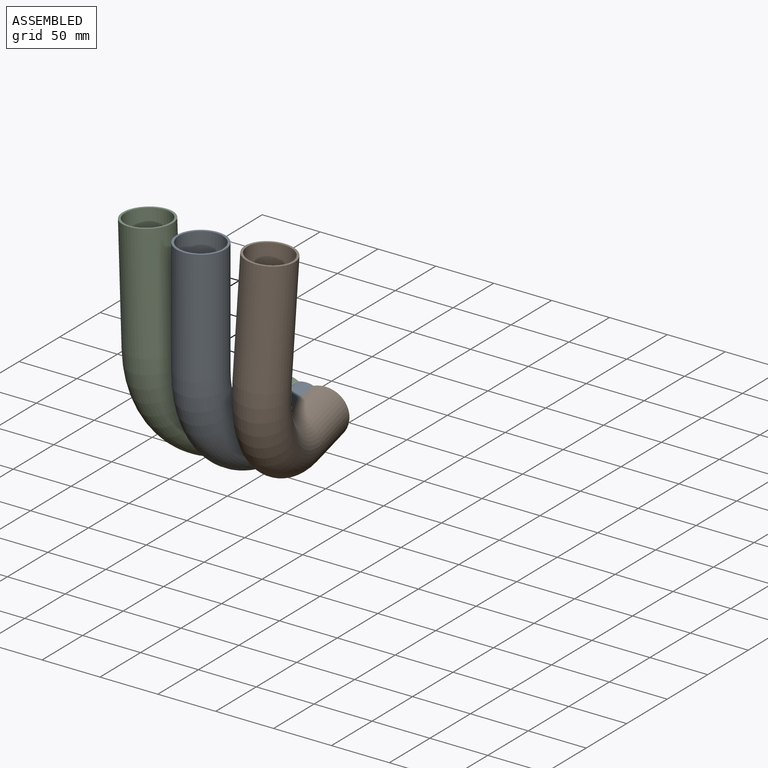
[diagram: assembled view]
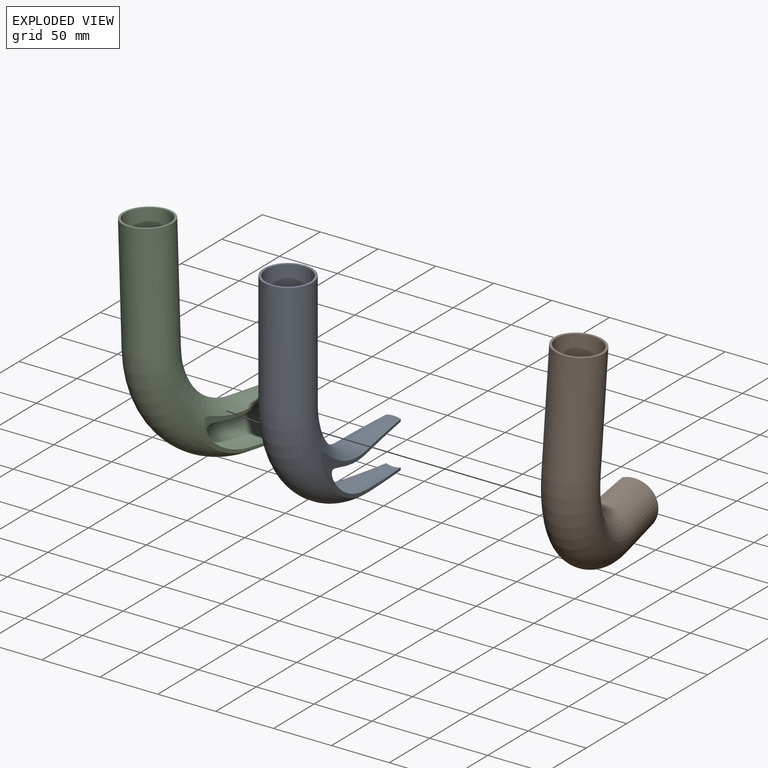
[diagram: exploded view]
GUIDED TOUR — MATED ASSEMBLY (Onshape document b40ffb2376809debd4cfbd4d, AutoMate assembly b40ffb2376809debd4cfbd4d_5d13aac50a0f370f7dc3dde9_d247ac0e1e0837ec62060219_default)

This assembly has 3 components, labeled P0..P2 below (a component is one placed occurrence of a part; the same part can appear more than once), held together by 2 mates. A mate is a constraint between two components; its type names the relative motion it leaves free:
  FASTENED — locks the two components together rigidly (no relative motion).
Axis/direction vectors are unit vectors and 'through' points are millimeter coordinates, both in the assembly's world frame.

MATES
  1. FASTENED "Fastened 1": P0 <-> P1, direction (0.993, 0.122, 0.000) through (0.00, 56.39, -38.70) mm
  2. FASTENED "Fastened 2": P0 <-> P2, direction (-0.993, 0.122, 0.000) through (-12.67, 56.39, -38.70) mm

ASSEMBLY ORDER
  1. P2 — the base component [order verified]
  2. P0 [order verified]
  3. P1 [order verified]
Order-tag legend:
  [order verified] — this step's position reverses a verified removal order: the component was checked to insert without passing through the ones already placed.

Of the 3 components, 3 carry the full construction recipe — the FeatureScript program that regenerates the part's solid from scratch; the rest are supplied as boundary geometry only.
Each toured component is shown spotlighted twice — in the assembled view, then in the exploded view, where a leader line traces a displaced component back to its assembled socket (saturated green if recipe-attached, orange if geometry-only; every other component desaturated gray) — followed by its recipe or geometry summary and the mates that hold it.
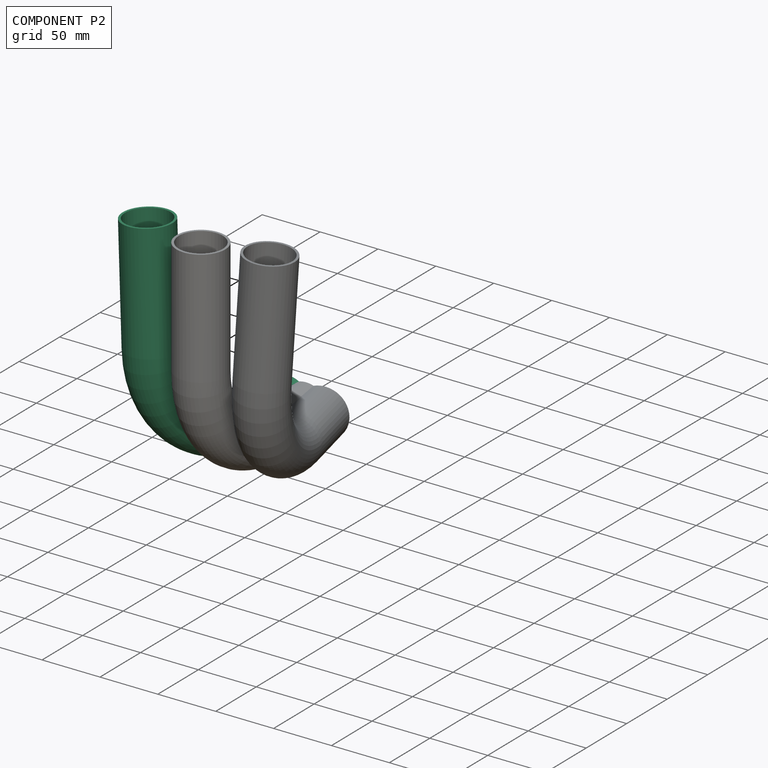
[diagram: component P2 — assembled]
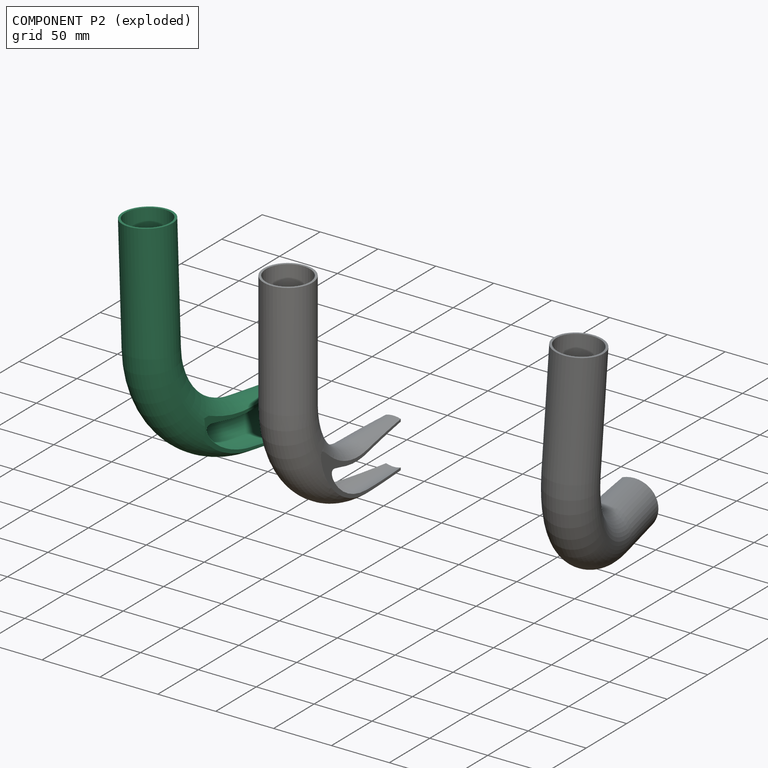
[diagram: component P2 — exploded]
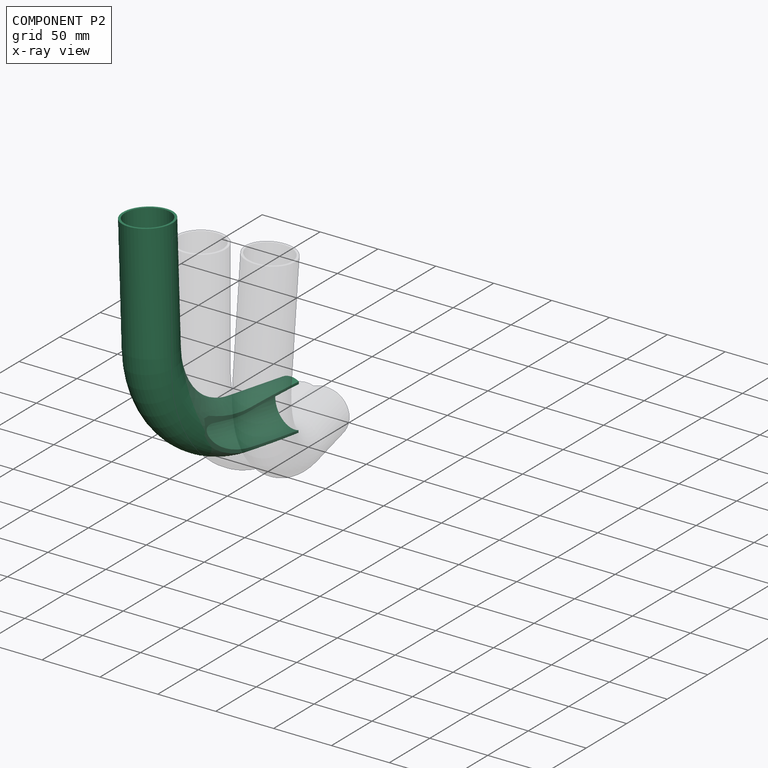
[diagram: component P2 — x-ray view]
COMPONENT P2 — recipe-attached (CADFS 00410510, mesh-verified: the recipe's output STEP matches this component's geometry to below the mesh-comparison resolution (tessellation chordal tolerance ~0.382 mm)).
Held by: FASTENED mate "Fastened 2" to P0.
Construction recipe (FeatureScript — the CAD program that rebuilds this solid; sketch coordinates are in the units given by the * unit suffixes, e.g. mm):

FeatureScript 2105;
import(path : "onshape/std/geometry.fs", version : "2105.0");
import(path : "onshape/std/common.fs", version : "2105.0");
const mm = millimeter;
const VERTEX = EntityType.VERTEX;
const EDGE = EntityType.EDGE;
const FACE = EntityType.FACE;
const BODY = EntityType.BODY;
function v(x, y){return vector(x, y);}
function OD(order){return orderDisambiguation(order);}
function OSD(set){return originalSetDisambiguation(set);}
function TD(topology){return topologyDisambiguation(topology);}
function TDD(query){return trueDependencyDisambiguation(query);}
function sQuery(a, b, c) {return sketchEntityQuery(a, b, c);}

annotation { "Feature Type Name" : "Feature", "Feature Type Description" : "" }
export const myFeature = defineFeature(function(context is Context, id is Id, definition is map)
    precondition{}
    {
        {
            var Q0;
            Q0=qCreatedBy(makeId("Right.planeOp"),FACE);
            var sketch = newSketch(context, id + "F0", { "sketchPlane" : qUnion([Q0])});
            skArc(sketch, "E0", {"start": v(0, -80) * mm, "mid": v(-56.57, -56.57) * mm, "end": v(-80, 0) * mm});
            skSolve(sketch);
        }
        {
            var Q0;
            Q0=qCreatedBy(makeId("Top.planeOp"),FACE);
            var sketch = newSketch(context, id + "F1", { "sketchPlane" : qUnion([Q0])});
            skCircle(sketch, "E1", {"center": v(0, -80.02) * mm, "radius": 21 * mm});
            skCircle(sketch, "E2", {"center": v(0, -80.02) * mm, "radius": 19 * mm});
            skSolve(sketch);
        }
        {
            var Q0;
            Q0=makeQuery(id+"F1.imprint","IMPRINT",FACE,{"disambiguationData":[TD([[makeQuery(id+"F1.imprint","IMPRINT",EDGE,{"derivedFrom":sQuery(id+"F1.wireOp",EDGE,"E1")}),1.0]])]});
            var Q1;
            Q1=sQuery(id+"F0.wireOp",EDGE,"E0");
            sweep(context, id + "F2", {"profiles" : qUnion([Q0]), "path" : qUnion([Q1])});
        }
        {
            var Q0;
            Q0=makeQuery(id+"F2.opSweep","CAP_FACE",FACE,{"disambiguationData":[OSD([sQuery(id+"F0.wireOp",VERTEX,"E0.end"),sQuery(id+"F1.wireOp",EDGE,"E1"),sQuery(id+"F1.wireOp",EDGE,"E2")])],"isStart":true});
            extrude(context, id + "F3", {"entities" : qUnion([Q0]), "operationType" : NewBodyOperationType.ADD, "depth" : 100 * mm});
        }
        {
            var Q0;
            Q0=makeQuery(id+"F2.opSweep","CAP_FACE",FACE,{"disambiguationData":[OSD([sQuery(id+"F0.wireOp",VERTEX,"E0.start"),sQuery(id+"F1.wireOp",EDGE,"E1"),sQuery(id+"F1.wireOp",EDGE,"E2")])],"isStart":false});
            extrude(context, id + "F4", {"entities" : qUnion([Q0]), "operationType" : NewBodyOperationType.ADD, "depth" : 50 * mm});
        }
        {
            var Q0;
            Q0=makeQuery(id+"F4.opExtrude","SWEPT_FACE",FACE,{"disambiguationData":[OSD([sQuery(id+"F0.wireOp",VERTEX,"E0.start"),sQuery(id+"F1.wireOp",EDGE,"E2")])]});
            cPlane(context, id + "F5", {"entities" : qUnion([Q0]), "cplaneType" : CPlaneType.LINE_ANGLE, "offset" : 25 * mm, "angle" : 3 * degree, "width" : 150 * mm, "height" : 150 * mm});
        }
        {
            var Q0;
            Q0=qCreatedBy(id+"F5.planeOp",FACE);
            var sketch = newSketch(context, id + "F6", { "sketchPlane" : qUnion([Q0])});
            skLineSegment(sketch, "E3", {"start": v(-2.15, 50) * mm, "end": v(-14.42, -50) * mm, "construction": true});
            skLineSegment(sketch, "E4", {"start": v(-14.42, -50) * mm, "end": v(-50, -50) * mm, "construction": true});
            skLineSegment(sketch, "E5", {"start": v(-50, -50) * mm, "end": v(-50, 50) * mm, "construction": true});
            skLineSegment(sketch, "E6", {"start": v(-50, 50) * mm, "end": v(-2.15, 50) * mm, "construction": true});
            skLineSegment(sketch, "E7.0", {"start": v(23.19, 50) * mm, "end": v(-14.81, 50) * mm});
            skLineSegment(sketch, "E8.MirrorCS", {"start": v(58.38, 50) * mm, "end": v(10.52, 50) * mm});
            skLineSegment(sketch, "E9.MirrorCS", {"start": v(58.38, -50) * mm, "end": v(58.38, 50) * mm});
            skLineSegment(sketch, "E10.MirrorCS", {"start": v(10.52, 50) * mm, "end": v(22.8, -50) * mm});
            skLineSegment(sketch, "E11.MirrorCS", {"start": v(22.8, -50) * mm, "end": v(58.38, -50) * mm});
            skSolve(sketch);
        }
        {
            var Q0;
            Q0=qSketchRegion(id+"F6",true);
            extrude(context, id + "F7", {"entities" : qUnion([Q0]), "operationType" : NewBodyOperationType.REMOVE, "depth" : 50 * mm, "symmetric" : true});
        }
    });
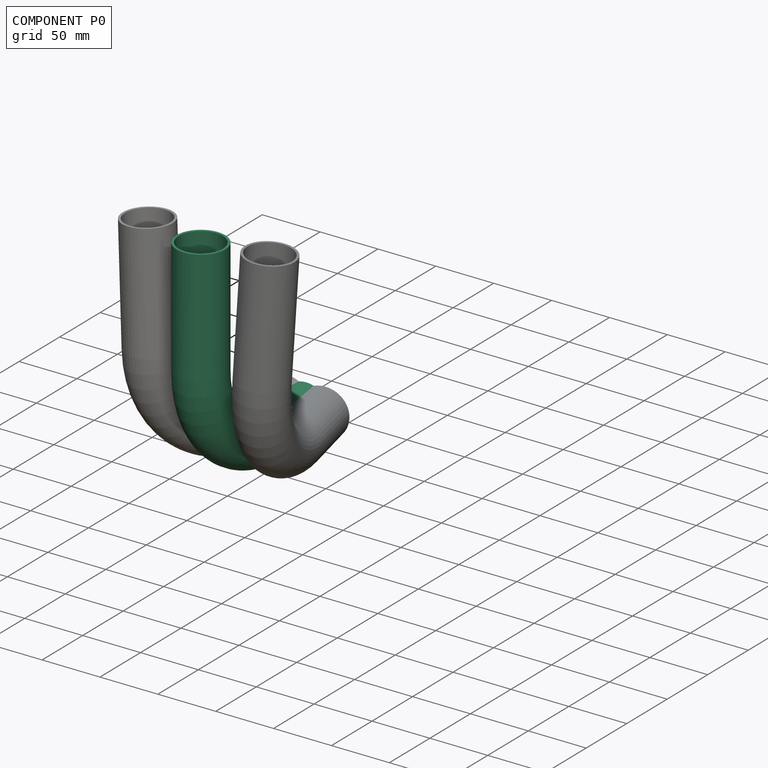
[diagram: component P0 — assembled]
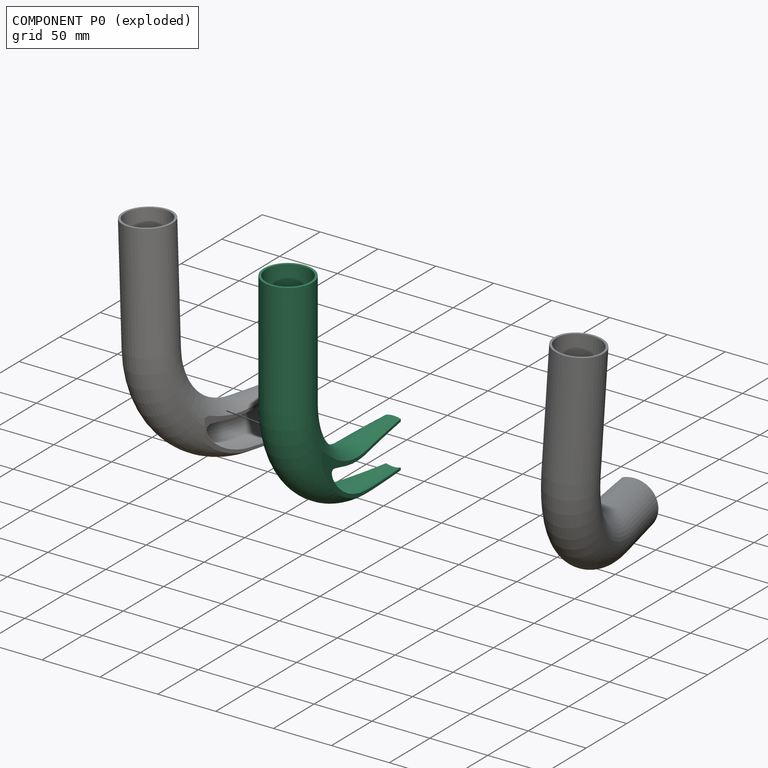
[diagram: component P0 — exploded]
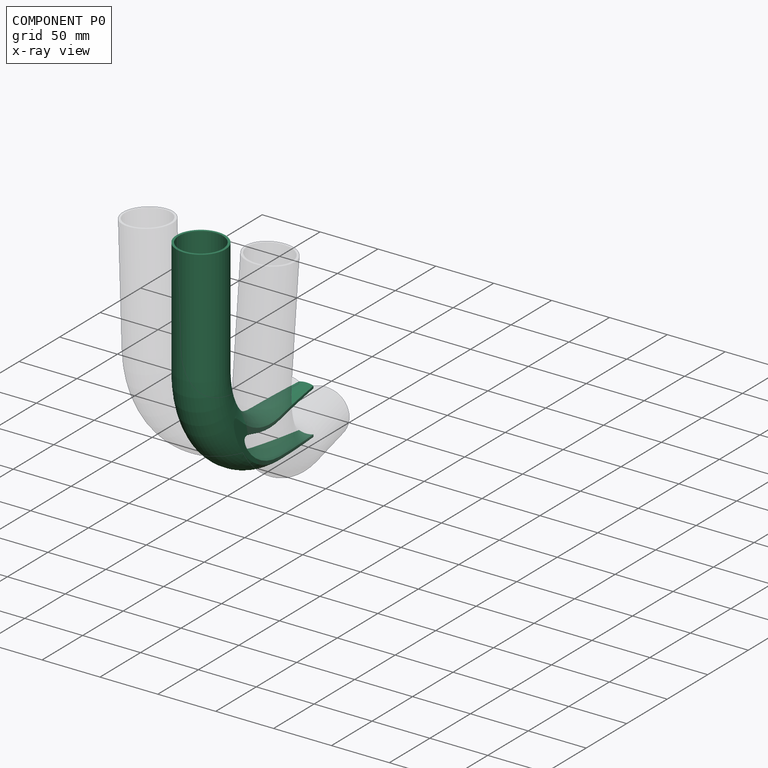
[diagram: component P0 — x-ray view]
COMPONENT P0 — recipe-attached (CADFS 00410509, mesh-verified: the recipe's output STEP matches this component's geometry to below the mesh-comparison resolution (tessellation chordal tolerance ~0.382 mm)).
Held by: FASTENED mate "Fastened 1" to P1; FASTENED mate "Fastened 2" to P2.
Construction recipe (FeatureScript — the CAD program that rebuilds this solid; sketch coordinates are in the units given by the * unit suffixes, e.g. mm):

FeatureScript 2105;
import(path : "onshape/std/geometry.fs", version : "2105.0");
import(path : "onshape/std/common.fs", version : "2105.0");
const mm = millimeter;
const VERTEX = EntityType.VERTEX;
const EDGE = EntityType.EDGE;
const FACE = EntityType.FACE;
const BODY = EntityType.BODY;
function v(x, y){return vector(x, y);}
function OD(order){return orderDisambiguation(order);}
function OSD(set){return originalSetDisambiguation(set);}
function TD(topology){return topologyDisambiguation(topology);}
function TDD(query){return trueDependencyDisambiguation(query);}
function sQuery(a, b, c) {return sketchEntityQuery(a, b, c);}

annotation { "Feature Type Name" : "Feature", "Feature Type Description" : "" }
export const myFeature = defineFeature(function(context is Context, id is Id, definition is map)
    precondition{}
    {
        {
            var Q0;
            Q0=qCreatedBy(makeId("Right.planeOp"),FACE);
            var sketch = newSketch(context, id + "F0", { "sketchPlane" : qUnion([Q0])});
            skArc(sketch, "E0", {"start": v(0, -80) * mm, "mid": v(-56.57, -56.57) * mm, "end": v(-80, 0) * mm});
            skSolve(sketch);
        }
        {
            var Q0;
            Q0=qCreatedBy(makeId("Top.planeOp"),FACE);
            var sketch = newSketch(context, id + "F1", { "sketchPlane" : qUnion([Q0])});
            skCircle(sketch, "E1", {"center": v(0, -80.02) * mm, "radius": 21 * mm});
            skCircle(sketch, "E2", {"center": v(0, -80.02) * mm, "radius": 19 * mm});
            skSolve(sketch);
        }
        {
            var Q0;
            Q0=makeQuery(id+"F1.imprint","IMPRINT",FACE,{"disambiguationData":[TD([[makeQuery(id+"F1.imprint","IMPRINT",EDGE,{"derivedFrom":sQuery(id+"F1.wireOp",EDGE,"E1")}),1.0]])]});
            var Q1;
            Q1=sQuery(id+"F0.wireOp",EDGE,"E0");
            sweep(context, id + "F2", {"profiles" : qUnion([Q0]), "path" : qUnion([Q1])});
        }
        {
            var Q0;
            Q0=makeQuery(id+"F2.opSweep","CAP_FACE",FACE,{"disambiguationData":[OSD([sQuery(id+"F0.wireOp",VERTEX,"E0.end"),sQuery(id+"F1.wireOp",EDGE,"E1"),sQuery(id+"F1.wireOp",EDGE,"E2")])],"isStart":true});
            extrude(context, id + "F3", {"entities" : qUnion([Q0]), "operationType" : NewBodyOperationType.ADD, "depth" : 100 * mm});
        }
        {
            var Q0;
            Q0=makeQuery(id+"F2.opSweep","CAP_FACE",FACE,{"disambiguationData":[OSD([sQuery(id+"F0.wireOp",VERTEX,"E0.start"),sQuery(id+"F1.wireOp",EDGE,"E1"),sQuery(id+"F1.wireOp",EDGE,"E2")])],"isStart":false});
            extrude(context, id + "F4", {"entities" : qUnion([Q0]), "operationType" : NewBodyOperationType.ADD, "depth" : 50 * mm});
        }
        {
            var Q0;
            Q0=makeQuery(id+"F4.opExtrude","SWEPT_FACE",FACE,{"disambiguationData":[OSD([sQuery(id+"F0.wireOp",VERTEX,"E0.start"),sQuery(id+"F1.wireOp",EDGE,"E2")])]});
            cPlane(context, id + "F5", {"entities" : qUnion([Q0]), "cplaneType" : CPlaneType.LINE_ANGLE, "offset" : 25 * mm, "angle" : 0 * degree, "width" : 150 * mm, "height" : 150 * mm});
        }
        {
            var Q0;
            Q0=qCreatedBy(id+"F5.planeOp",FACE);
            var sketch = newSketch(context, id + "F6", { "sketchPlane" : qUnion([Q0])});
            skLineSegment(sketch, "E3", {"start": v(-6.33, 50) * mm, "end": v(-30.9, -150) * mm});
            skLineSegment(sketch, "E4", {"start": v(-30.9, -150) * mm, "end": v(-50, -150) * mm});
            skLineSegment(sketch, "E5", {"start": v(-50, -150) * mm, "end": v(-50, 50) * mm});
            skLineSegment(sketch, "E6", {"start": v(-50, 50) * mm, "end": v(-6.33, 50) * mm});
            skLineSegment(sketch, "E7.0", {"start": v(19, 50) * mm, "end": v(-19, 50) * mm});
            skLineSegment(sketch, "E8.MirrorCS", {"start": v(50, 50) * mm, "end": v(6.33, 50) * mm});
            skSolve(sketch);
        }
        {
            var Q0;
            Q0=qSketchRegion(id+"F6",true);
            extrude(context, id + "F7", {"entities" : qUnion([Q0]), "depth" : 200 * mm, "symmetric" : true});
        }
        {
            var Q0;
            Q0=makeQuery(id+"F7.opExtrude","SWEPT_BODY",BODY,{"disambiguationData":[OSD([sQuery(id+"F6.wireOp",EDGE,"E3"),sQuery(id+"F6.wireOp",EDGE,"E4"),sQuery(id+"F6.wireOp",EDGE,"E5"),sQuery(id+"F6.wireOp",EDGE,"E6"),sQuery(id+"F6.wireOp",EDGE,"E7.0")])]});
            var Q1;
            Q1=qCreatedBy(makeId("Right.planeOp"),FACE);
            mirror(context, id + "F8", {"entities" : qUnion([Q0]), "mirrorPlane" : qUnion([Q1])});
        }
        {
            var Q0;
            Q0=makeQuery(id+"F8.opPattern","COPY",BODY,{"derivedFrom":makeQuery(id+"F7.opExtrude","SWEPT_BODY",BODY,{"disambiguationData":[OSD([sQuery(id+"F6.wireOp",EDGE,"E3"),sQuery(id+"F6.wireOp",EDGE,"E4"),sQuery(id+"F6.wireOp",EDGE,"E5"),sQuery(id+"F6.wireOp",EDGE,"E6"),sQuery(id+"F6.wireOp",EDGE,"E7.0")])]}),"instanceName":"1"});
            var Q1;
            Q1=makeQuery(id+"F7.opExtrude","SWEPT_BODY",BODY,{"disambiguationData":[OSD([sQuery(id+"F6.wireOp",EDGE,"E3"),sQuery(id+"F6.wireOp",EDGE,"E4"),sQuery(id+"F6.wireOp",EDGE,"E5"),sQuery(id+"F6.wireOp",EDGE,"E6"),sQuery(id+"F6.wireOp",EDGE,"E7.0")])]});
            var Q2;
            Q2=makeQuery(id+"F2.opSweep","SWEPT_BODY",BODY,{"disambiguationData":[OSD([sQuery(id+"F0.wireOp",EDGE,"E0"),sQuery(id+"F1.wireOp",EDGE,"E1"),sQuery(id+"F1.wireOp",EDGE,"E2")])]});
            booleanBodies(context, id + "F9", {"operationType" : BooleanOperationType.SUBTRACTION, "tools" : qUnion([Q0, Q1]), "targets" : qUnion([Q2])});
        }
    });
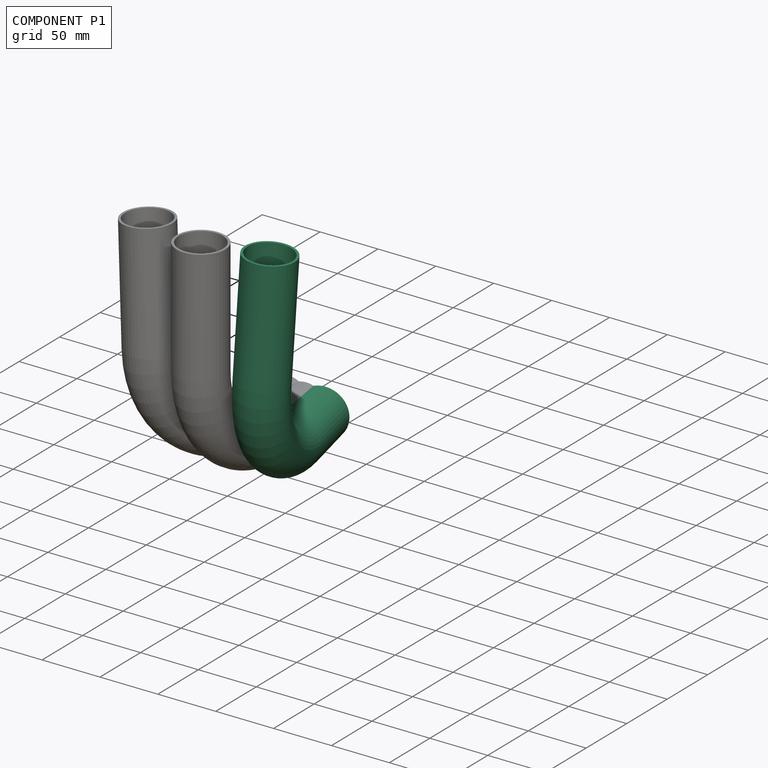
[diagram: component P1 — assembled]
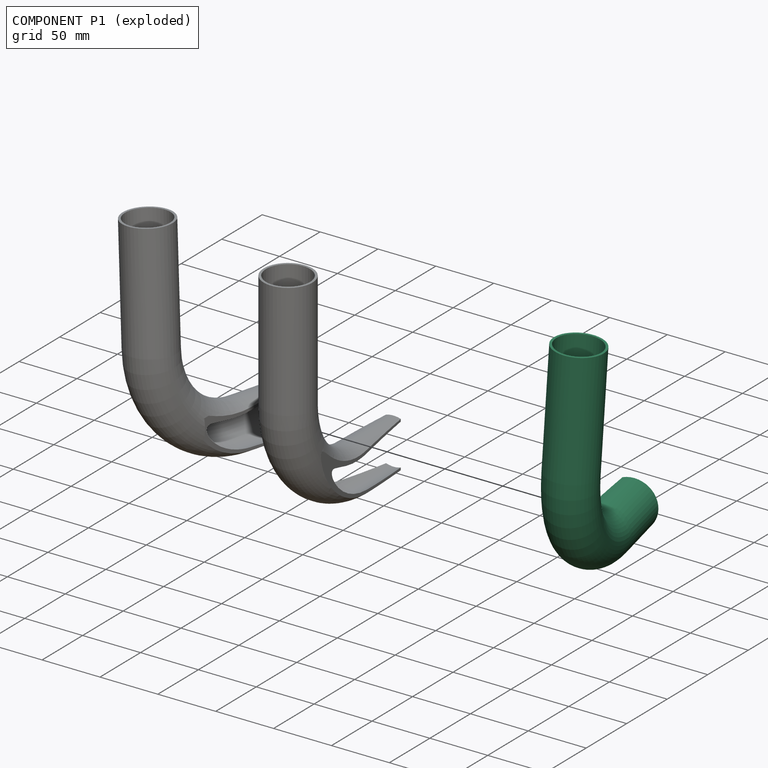
[diagram: component P1 — exploded]
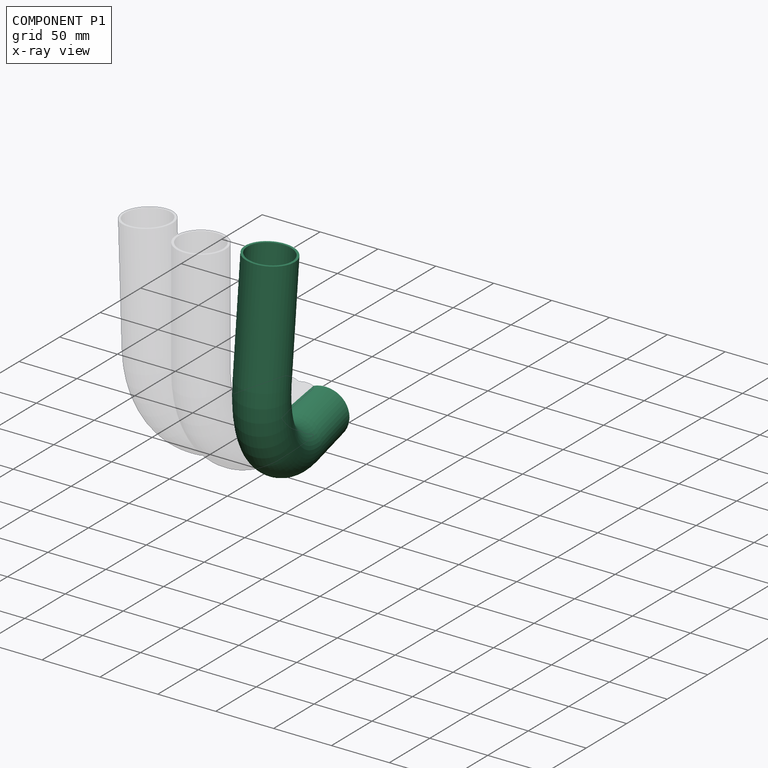
[diagram: component P1 — x-ray view]
COMPONENT P1 — recipe-attached (CADFS 00410508, mesh-verified: the recipe's output STEP matches this component's geometry to below the mesh-comparison resolution (tessellation chordal tolerance ~0.382 mm)).
Held by: FASTENED mate "Fastened 1" to P0.
Construction recipe (FeatureScript — the CAD program that rebuilds this solid; sketch coordinates are in the units given by the * unit suffixes, e.g. mm):

FeatureScript 2105;
import(path : "onshape/std/geometry.fs", version : "2105.0");
import(path : "onshape/std/common.fs", version : "2105.0");
const mm = millimeter;
const VERTEX = EntityType.VERTEX;
const EDGE = EntityType.EDGE;
const FACE = EntityType.FACE;
const BODY = EntityType.BODY;
function v(x, y){return vector(x, y);}
function OD(order){return orderDisambiguation(order);}
function OSD(set){return originalSetDisambiguation(set);}
function TD(topology){return topologyDisambiguation(topology);}
function TDD(query){return trueDependencyDisambiguation(query);}
function sQuery(a, b, c) {return sketchEntityQuery(a, b, c);}

annotation { "Feature Type Name" : "Feature", "Feature Type Description" : "" }
export const myFeature = defineFeature(function(context is Context, id is Id, definition is map)
    precondition{}
    {
        {
            var Q0;
            Q0=qCreatedBy(makeId("Right.planeOp"),FACE);
            var sketch = newSketch(context, id + "F0", { "sketchPlane" : qUnion([Q0])});
            skArc(sketch, "E0", {"start": v(0, -80) * mm, "mid": v(-56.57, -56.57) * mm, "end": v(-80, 0) * mm});
            skSolve(sketch);
        }
        {
            var Q0;
            Q0=qCreatedBy(makeId("Top.planeOp"),FACE);
            var sketch = newSketch(context, id + "F1", { "sketchPlane" : qUnion([Q0])});
            skCircle(sketch, "E1", {"center": v(0, -80.02) * mm, "radius": 21 * mm});
            skCircle(sketch, "E2", {"center": v(0, -80.02) * mm, "radius": 19 * mm});
            skSolve(sketch);
        }
        {
            var Q0;
            Q0=makeQuery(id+"F1.imprint","IMPRINT",FACE,{"disambiguationData":[TD([[makeQuery(id+"F1.imprint","IMPRINT",EDGE,{"derivedFrom":sQuery(id+"F1.wireOp",EDGE,"E1")}),1.0]])]});
            var Q1;
            Q1=sQuery(id+"F0.wireOp",EDGE,"E0");
            sweep(context, id + "F2", {"profiles" : qUnion([Q0]), "path" : qUnion([Q1])});
        }
        {
            var Q0;
            Q0=makeQuery(id+"F2.opSweep","CAP_FACE",FACE,{"disambiguationData":[OSD([sQuery(id+"F0.wireOp",VERTEX,"E0.end"),sQuery(id+"F1.wireOp",EDGE,"E1"),sQuery(id+"F1.wireOp",EDGE,"E2")])],"isStart":true});
            extrude(context, id + "F3", {"entities" : qUnion([Q0]), "operationType" : NewBodyOperationType.ADD, "depth" : 100 * mm});
        }
        {
            var Q0;
            Q0=makeQuery(id+"F2.opSweep","CAP_FACE",FACE,{"disambiguationData":[OSD([sQuery(id+"F0.wireOp",VERTEX,"E0.start"),sQuery(id+"F1.wireOp",EDGE,"E1"),sQuery(id+"F1.wireOp",EDGE,"E2")])],"isStart":false});
            extrude(context, id + "F4", {"entities" : qUnion([Q0]), "operationType" : NewBodyOperationType.ADD, "depth" : 50 * mm});
        }
        {
            var Q0;
            Q0=makeQuery(id+"F4.opExtrude","SWEPT_FACE",FACE,{"disambiguationData":[OSD([sQuery(id+"F0.wireOp",VERTEX,"E0.start"),sQuery(id+"F1.wireOp",EDGE,"E2")])]});
            cPlane(context, id + "F5", {"entities" : qUnion([Q0]), "cplaneType" : CPlaneType.LINE_ANGLE, "offset" : 25 * mm, "angle" : 357 * degree, "width" : 150 * mm, "height" : 150 * mm});
        }
        {
            var Q0;
            Q0=qCreatedBy(id+"F5.planeOp",FACE);
            var sketch = newSketch(context, id + "F6", { "sketchPlane" : qUnion([Q0])});
            skLineSegment(sketch, "E3", {"start": v(-10.52, 50) * mm, "end": v(-35.08, -150) * mm});
            skLineSegment(sketch, "E4", {"start": v(-35.08, -150) * mm, "end": v(-50, -150) * mm});
            skLineSegment(sketch, "E5", {"start": v(-50, -150) * mm, "end": v(-50, 50) * mm});
            skLineSegment(sketch, "E6", {"start": v(-50, 50) * mm, "end": v(-10.52, 50) * mm});
            skLineSegment(sketch, "E7.0", {"start": v(14.81, 50) * mm, "end": v(-23.19, 50) * mm});
            skSolve(sketch);
        }
        {
            var Q0;
            Q0 = qSketchRegion(id + "F6", true);
            extrude(context, id + "F7", {"entities" : qUnion([Q0]), "operationType" : NewBodyOperationType.REMOVE, "depth" : 200 * mm, "symmetric" : true});
        }
    });
PROVENANCE & LICENSES
Assembly (occurrences, transforms, mates, per-part STEP geometry): AutoMate dataset, Zenodo record 7776208, CC0.
Construction recipes: CADFS (HuggingFace VladPyatov/CADFS, CC-BY-4.0, layered over the ABC dataset), FeatureScript reconstruction programs keyed by ABC model id.
Join: ABC meta listings map ABC model id -> Onshape documentId; within a shared document, parts are matched by geometric signature (bounding-box dims + volume at 0.1% relative tolerance, exact B-rep face/solid counts).
Verification: 3 of this assembly's 3 components carry a recipe attachment, and every attachment is mesh-verified: the CADFS STEP and the AutoMate member STEP were compared as meshes in their shared local frame (symmetric sampled-point-to-mesh distance); worst across the 3 attachments: below the mesh-comparison resolution (tessellation chordal tolerance ~0.382 mm) on a 255 mm part.
Renders: orthographic iso camera (az 35 / el 25); the floor grid conveys scale (grid pitch printed in each image; no ruler). In the exploded view each component is displaced by its stored offset vector: the offsets alone carry the explosion direction (mate normal/axis signs are not orientation cues and do not encode it), and separation distances are assigned per mate-chain, not proportionally to assembly-order depth.
